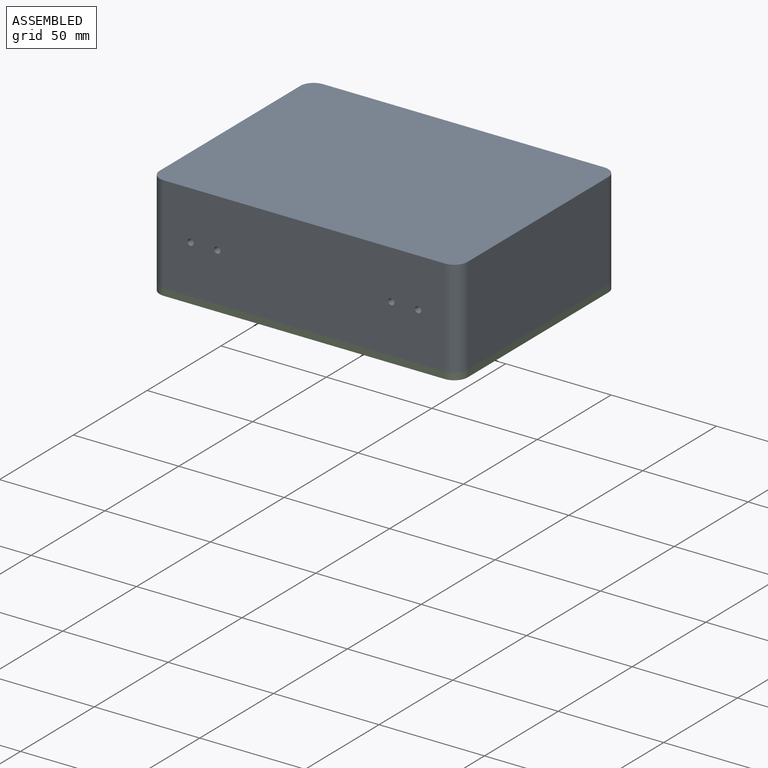
[diagram: assembled view]
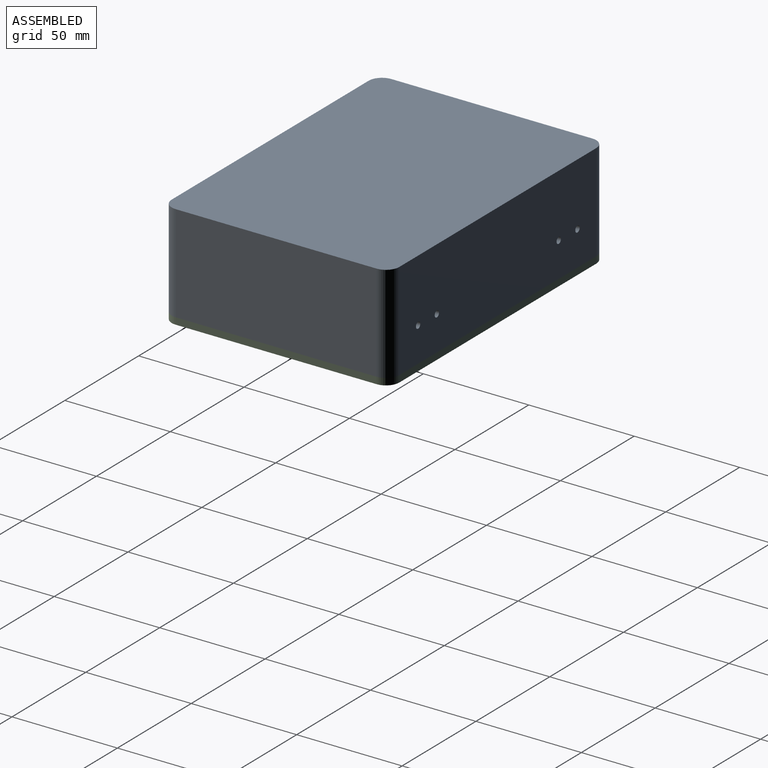
[diagram: assembled view, second angle]
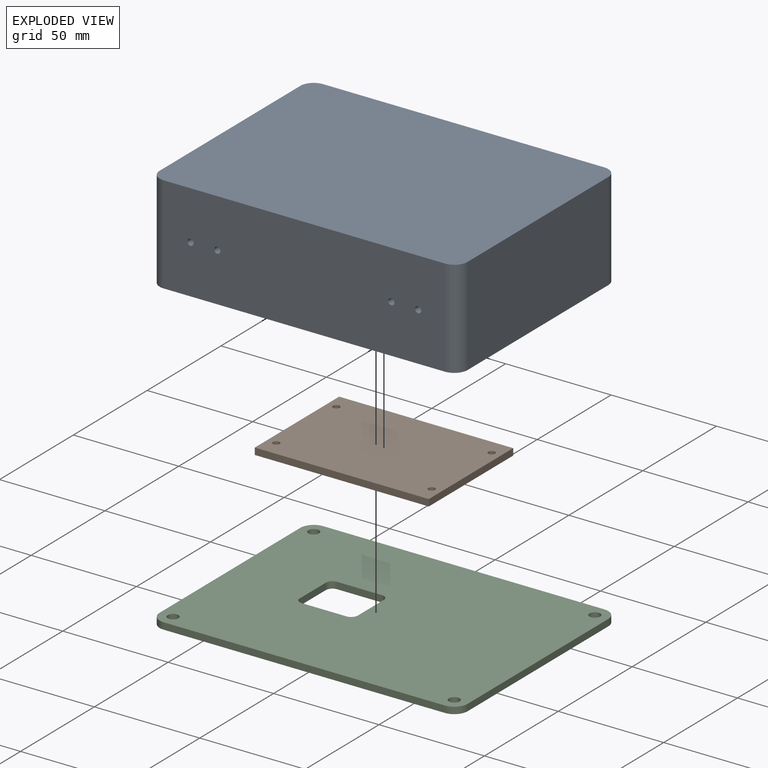
[diagram: exploded view]
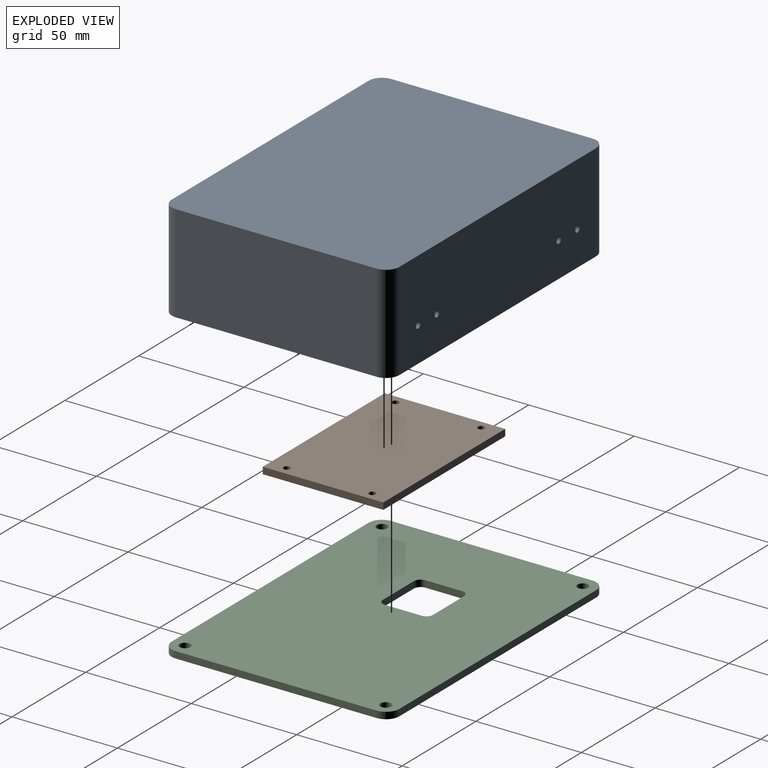
[diagram: exploded view, second angle]
ASSEMBLY  parts=3 mates=4
PART A: 118 faces, bbox 147.5x109.4x46.4 mm
  f0: plane 125.37x87.27mm, normal (0,0,-1), area 1358.3mm2, adj f1,f2,f3,f4,f5,f6,f7,f8
  f1: cylinder r=10.16mm len=10.16mm, axis (0,0,1), area 101.3mm2, adj f0,f2,f8,f9
  f2: plane 93.98x6.35mm, normal (0,1,0), area 596.8mm2, adj f0,f1,f3,f9
  f3: cylinder r=10.16mm len=10.16mm, axis (0,0,1), area 101.3mm2, adj f0,f2,f4,f9
  f4: plane 62.23x6.35mm, normal (1,0,0), area 395.2mm2, adj f0,f3,f5,f9
  f5: cylinder r=10.16mm len=10.16mm, axis (0,0,1), area 101.3mm2, adj f0,f4,f6,f9
  f6: plane 93.98x6.35mm, normal (0,-1,0), area 596.8mm2, adj f0,f5,f7,f9
  f7: cylinder r=10.16mm len=10.16mm, axis (0,0,1), area 101.3mm2, adj f0,f6,f8,f9
  f8: plane 62.23x6.35mm, normal (-1,0,0), area 395.2mm2, adj f0,f1,f7,f9
  f9: plane 114.3x82.55mm, normal (0,0,-1), area 3709mm2, adj f1,f2,f3,f4,f5,f6,f7,f8
  f10: cylinder r=6.35mm len=31.75mm, axis (0,0,1), area 316.7mm2, adj f9,f11,f17,f18
  f11: plane 76.2x31.75mm, normal (0,1,0), area 2419.3mm2, adj f9,f10,f12,f18
  f12: cylinder r=6.35mm len=31.75mm, axis (0,0,1), area 316.7mm2, adj f9,f11,f13,f18
  f13: plane 50.8x31.75mm, normal (1,0,0), area 1612.9mm2, adj f9,f12,f14,f18
  f14: cylinder r=6.35mm len=31.75mm, axis (0,0,1), area 316.7mm2, adj f9,f13,f15,f18
  f15: plane 76.2x31.75mm, normal (0,-1,0), area 2419.3mm2, adj f9,f14,f16,f18
  f16: cylinder r=6.35mm len=31.75mm, axis (0,0,1), area 316.7mm2, adj f9,f15,f17,f18
  f17: plane 50.8x31.75mm, normal (-1,0,0), area 1612.9mm2, adj f9,f10,f16,f18
  f18: plane 88.9x63.5mm, normal (0,0,-1), area 5583.3mm2, adj f10,f11,f12,f13,f14,f15,f16,f17
  f19: cone r=24.38mm half-angle=5deg, axis (0,0,-1), area 114mm2, adj f20,f34,f74,f106
  f20: plane 92.2x2.94mm, normal (0,1,-0.09), area 272.5mm2, adj f19,f21,f72,f104
  f21: cone r=24.38mm half-angle=5deg, axis (0,0,-1), area 114mm2, adj f20,f22,f70,f102
  f22: plane 54.1x2.94mm, normal (1,0,-0.09), area 159.9mm2, adj f21,f23,f71,f103
  f23: cone r=24.38mm half-angle=5deg, axis (0,0,-1), area 114mm2, adj f22,f24,f73,f105
  f24: plane 92.2x2.94mm, normal (0,-1,-0.09), area 272.5mm2, adj f23,f25,f75,f107
  f25: cone r=24.38mm half-angle=5deg, axis (0,0,-1), area 114mm2, adj f24,f34,f77,f109
  f26: plane 92.2x2.94mm, normal (0,-1,-0.09), area 272.5mm2, adj f27,f33,f83,f112
  f27: cone r=17.4mm half-angle=5deg, axis (0,0,1), area 79.9mm2, adj f26,f28,f81,f114
  f28: plane 54.1x2.94mm, normal (1,0,-0.09), area 159.9mm2, adj f27,f29,f79,f116
  f29: cone r=17.4mm half-angle=5deg, axis (0,0,1), area 79.9mm2, adj f28,f30,f78,f117
  f30: plane 92.2x2.94mm, normal (0,1,-0.09), area 272.5mm2, adj f29,f31,f80,f115
  f31: cone r=17.4mm half-angle=5deg, axis (0,0,1), area 79.9mm2, adj f30,f32,f82,f113
  f32: plane 54.1x2.94mm, normal (-1,0,-0.09), area 159.9mm2, adj f31,f33,f84,f111
  f33: cone r=17.4mm half-angle=5deg, axis (0,0,1), area 79.9mm2, adj f26,f32,f85,f110
  f34: plane 54.1x2.94mm, normal (-1,0,-0.09), area 159.9mm2, adj f19,f25,f76,f108
  f35: plane 139.81x101.71mm, normal (0,0,-1), area 2467.5mm2, adj f70,f71,f72,f73,f74,f75,f76,f77
  f36: plane 146.05x107.95mm, normal (0,0,1), area 15731.5mm2, adj f37,f38,f39,f40,f41,f42,f43,f44
  f37: cylinder r=6.35mm len=46.36mm, axis (0,0,-1), area 462.4mm2, adj f36,f38,f44,f45
  f38: plane 95.25x46.36mm, normal (1,0,0), area 4415.3mm2, adj f36,f37,f39,f45
  f39: cylinder r=6.35mm len=46.36mm, axis (0,0,-1), area 462.4mm2, adj f36,f38,f40,f45
  f40: plane 133.35x46.36mm, normal (0,1,0), area 6154.2mm2, adj f36,f39,f41,f45,f94,f96,f98,f100
  f41: cylinder r=6.35mm len=46.36mm, axis (0,0,-1), area 462.4mm2, adj f36,f40,f42,f45
  f42: plane 95.25x46.36mm, normal (-1,0,0), area 4415.3mm2, adj f36,f41,f43,f45
  f43: cylinder r=6.35mm len=46.36mm, axis (0,0,-1), area 462.4mm2, adj f36,f42,f44,f45
  f44: plane 133.35x46.36mm, normal (0,-1,0), area 6154.2mm2, adj f36,f37,f43,f45,f86,f88,f90,f92
  f45: plane 146.05x107.95mm, normal (0,0,-1), area 1219.6mm2, adj f37,f38,f39,f40,f41,f42,f43,f44
  f46: cylinder r=1.47mm len=12.7mm, axis (0,0,-1), area 117.6mm2, adj f9,f47
  f47: cone r=0mm half-angle=59deg, axis (0,0,-1), area 8mm2, adj f46
  f48: cylinder r=1.47mm len=12.7mm, axis (0,0,-1), area 117.6mm2, adj f9,f49
  f49: cone r=0mm half-angle=59deg, axis (0,0,-1), area 8mm2, adj f48
  f50: cylinder r=1.47mm len=12.7mm, axis (0,0,-1), area 117.6mm2, adj f9,f51
  f51: cone r=0mm half-angle=59deg, axis (0,0,-1), area 8mm2, adj f50
  f52: cylinder r=1.47mm len=12.7mm, axis (0,0,-1), area 117.6mm2, adj f9,f53
  f53: cone r=0mm half-angle=59deg, axis (0,0,-1), area 8mm2, adj f52
  f54: cylinder r=1.47mm len=6.35mm, axis (0,0,-1), area 58.8mm2, adj f18,f55
  f55: cone r=0mm half-angle=59deg, axis (0,0,-1), area 8mm2, adj f54
  f56: cylinder r=1.47mm len=6.35mm, axis (0,0,-1), area 58.8mm2, adj f18,f57
  f57: cone r=0mm half-angle=59deg, axis (0,0,-1), area 8mm2, adj f56
  f58: cylinder r=1.47mm len=6.35mm, axis (0,0,-1), area 58.8mm2, adj f18,f59
  f59: cone r=0mm half-angle=59deg, axis (0,0,-1), area 8mm2, adj f58
  f60: cylinder r=1.47mm len=6.35mm, axis (0,0,-1), area 58.8mm2, adj f18,f61
  f61: cone r=0mm half-angle=59deg, axis (0,0,-1), area 8mm2, adj f60
  f62: cylinder r=3.52mm len=7.04mm, axis (0,0,-1), area 52.2mm2, adj f45,f63
  f63: cone r=0mm half-angle=59deg, axis (0,0,-1), area 45.4mm2, adj f62
  f64: cylinder r=3.52mm len=7.04mm, axis (0,0,-1), area 52.2mm2, adj f45,f65
  f65: cone r=0mm half-angle=59deg, axis (0,0,-1), area 45.4mm2, adj f64
  f66: cylinder r=3.52mm len=7.04mm, axis (0,0,-1), area 52.2mm2, adj f45,f67
  f67: cone r=0mm half-angle=59deg, axis (0,0,-1), area 45.4mm2, adj f66
  f68: cylinder r=3.52mm len=7.04mm, axis (0,0,-1), area 52.2mm2, adj f45,f69
  f69: cone r=0mm half-angle=59deg, axis (0,0,-1), area 45.4mm2, adj f68
  f70: torus R=23.8mm, axis (0,0,-1), area 35.8mm2, adj f21,f35,f71,f72
  f71: cylinder r=0.64mm len=54.1mm, axis (0,1,0), area 51mm2, adj f22,f35,f70,f73
  f72: cylinder r=0.64mm len=92.2mm, axis (1,0,0), area 86.9mm2, adj f20,f35,f70,f74
  f73: torus R=23.8mm, axis (0,0,-1), area 35.8mm2, adj f23,f35,f71,f75
  f74: torus R=23.8mm, axis (0,0,-1), area 35.8mm2, adj f19,f35,f72,f76
  f75: cylinder r=0.64mm len=92.2mm, axis (1,0,0), area 86.9mm2, adj f24,f35,f73,f77
  f76: cylinder r=0.64mm len=54.1mm, axis (0,1,0), area 51mm2, adj f34,f35,f74,f77
  f77: torus R=23.8mm, axis (0,0,-1), area 35.8mm2, adj f25,f35,f75,f76
  f78: torus R=17.98mm, axis (0,0,-1), area 26mm2, adj f29,f35,f79,f80
  f79: cylinder r=0.64mm len=54.1mm, axis (0,-1,0), area 51mm2, adj f28,f35,f78,f81
  f80: cylinder r=0.64mm len=92.2mm, axis (-1,0,0), area 86.9mm2, adj f30,f35,f78,f82
  f81: torus R=17.98mm, axis (0,0,-1), area 26mm2, adj f27,f35,f79,f83
  f82: torus R=17.98mm, axis (0,0,-1), area 26mm2, adj f31,f35,f80,f84
  f83: cylinder r=0.64mm len=92.2mm, axis (-1,0,0), area 86.9mm2, adj f26,f35,f81,f85
  f84: cylinder r=0.64mm len=54.1mm, axis (0,-1,0), area 51mm2, adj f32,f35,f82,f85
  f85: torus R=17.98mm, axis (0,0,-1), area 26mm2, adj f33,f35,f83,f84
  f86: cylinder r=1.47mm len=9.53mm, axis (0,-1,0), area 88.2mm2, adj f44,f87
  f87: cone r=0mm half-angle=59deg, axis (0,-1,0), area 8mm2, adj f86
  f88: cylinder r=1.47mm len=9.53mm, axis (0,-1,0), area 88.2mm2, adj f44,f89
  f89: cone r=0mm half-angle=59deg, axis (0,-1,0), area 8mm2, adj f88
  f90: cylinder r=1.47mm len=9.53mm, axis (0,-1,0), area 88.2mm2, adj f44,f91
  f91: cone r=0mm half-angle=59deg, axis (0,-1,0), area 8mm2, adj f90
  f92: cylinder r=1.47mm len=9.53mm, axis (0,-1,0), area 88.2mm2, adj f44,f93
  f93: cone r=0mm half-angle=59deg, axis (0,-1,0), area 8mm2, adj f92
  f94: cylinder r=1.47mm len=9.53mm, axis (0,1,0), area 88.2mm2, adj f40,f95
  f95: cone r=0mm half-angle=59deg, axis (0,1,0), area 8mm2, adj f94
  f96: cylinder r=1.47mm len=9.53mm, axis (0,1,0), area 88.2mm2, adj f40,f97
  f97: cone r=0mm half-angle=59deg, axis (0,1,0), area 8mm2, adj f96
  f98: cylinder r=1.47mm len=9.53mm, axis (0,1,0), area 88.2mm2, adj f40,f99
  f99: cone r=0mm half-angle=59deg, axis (0,1,0), area 8mm2, adj f98
  f100: cylinder r=1.47mm len=9.53mm, axis (0,1,0), area 88.2mm2, adj f40,f101
  f101: cone r=0mm half-angle=59deg, axis (0,1,0), area 8mm2, adj f100
  f102: torus R=25.2mm, axis (0,0,1), area 29.5mm2, adj f21,f45,f103,f104
  f103: cylinder r=0.51mm len=54.1mm, axis (0,1,0), area 40.8mm2, adj f22,f45,f102,f105
  f104: cylinder r=0.51mm len=92.2mm, axis (1,0,0), area 69.5mm2, adj f20,f45,f102,f106
  f105: torus R=25.2mm, axis (0,0,1), area 29.5mm2, adj f23,f45,f103,f107
  f106: torus R=25.2mm, axis (0,0,1), area 29.5mm2, adj f19,f45,f104,f108
  f107: cylinder r=0.51mm len=92.2mm, axis (1,0,0), area 69.5mm2, adj f24,f45,f105,f109
  f108: cylinder r=0.51mm len=54.1mm, axis (0,1,0), area 40.8mm2, adj f34,f45,f106,f109
  f109: torus R=25.2mm, axis (0,0,1), area 29.5mm2, adj f25,f45,f107,f108
  f110: torus R=16.58mm, axis (0,0,1), area 20mm2, adj f0,f33,f111,f112
  f111: cylinder r=0.51mm len=54.1mm, axis (0,1,0), area 40.8mm2, adj f0,f32,f110,f113
  f112: cylinder r=0.51mm len=92.2mm, axis (1,0,0), area 69.5mm2, adj f0,f26,f110,f114
  f113: torus R=16.58mm, axis (0,0,1), area 20mm2, adj f0,f31,f111,f115
  f114: torus R=16.58mm, axis (0,0,1), area 20mm2, adj f0,f27,f112,f116
  f115: cylinder r=0.51mm len=92.2mm, axis (1,0,0), area 69.5mm2, adj f0,f30,f113,f117
  f116: cylinder r=0.51mm len=54.1mm, axis (0,1,0), area 40.8mm2, adj f0,f28,f114,f117
  f117: torus R=16.58mm, axis (0,0,1), area 20mm2, adj f0,f29,f115,f116
PART B: 10 faces, bbox 82.6x57.2x3.2 mm
  f0: plane 57.15x3.18mm, normal (1,0,0), area 181.5mm2, adj f1,f3,f4,f5
  f1: plane 82.55x3.18mm, normal (0,1,0), area 262.1mm2, adj f0,f2,f4,f5
  f2: plane 57.15x3.18mm, normal (-1,0,0), area 181.5mm2, adj f1,f3,f4,f5
  f3: plane 82.55x3.18mm, normal (0,-1,0), area 262.1mm2, adj f0,f2,f4,f5
  f4: plane 82.55x57.15mm, normal (0,0,1), area 4686.1mm2, adj f0,f1,f2,f3,f6,f7,f8,f9
  f5: plane 82.55x57.15mm, normal (0,0,-1), area 4686.1mm2, adj f0,f1,f2,f3,f6,f7,f8,f9
  f6: cylinder r=1.59mm len=3.18mm, axis (0,0,-1), area 31.7mm2, adj f4,f5
  f7: cylinder r=1.59mm len=3.18mm, axis (0,0,-1), area 31.7mm2, adj f4,f5
  f8: cylinder r=1.59mm len=3.18mm, axis (0,0,-1), area 31.7mm2, adj f4,f5
  f9: cylinder r=1.59mm len=3.18mm, axis (0,0,-1), area 31.7mm2, adj f4,f5
PART C: 22 faces, bbox 146.1x108x3.2 mm
  f0: plane 133.35x3.18mm, normal (0,-1,0), area 423.4mm2, adj f1,f7,f8,f9
  f1: cylinder r=6.35mm len=6.35mm, axis (0,0,-1), area 31.7mm2, adj f0,f2,f8,f9
  f2: plane 95.25x3.18mm, normal (1,0,0), area 302.4mm2, adj f1,f3,f8,f9
  f3: cylinder r=6.35mm len=6.35mm, axis (0,0,-1), area 31.7mm2, adj f2,f4,f8,f9
  f4: plane 133.35x3.18mm, normal (0,1,0), area 423.4mm2, adj f3,f5,f8,f9
  f5: cylinder r=6.35mm len=6.35mm, axis (0,0,-1), area 31.7mm2, adj f4,f6,f8,f9
  f6: plane 95.25x3.18mm, normal (-1,0,0), area 302.4mm2, adj f5,f7,f8,f9
  f7: cylinder r=6.35mm len=6.35mm, axis (0,0,-1), area 31.7mm2, adj f0,f6,f8,f9
  f8: plane 146.05x107.95mm, normal (0,0,1), area 15001.2mm2, adj f0,f1,f2,f3,f4,f5,f6,f7
  f9: plane 146.05x107.95mm, normal (0,0,-1), area 15001.2mm2, adj f0,f1,f2,f3,f4,f5,f6,f7
  f10: cylinder r=2.54mm len=5.08mm, axis (0,0,1), area 50.7mm2, adj f8,f9
  f11: cylinder r=2.54mm len=5.08mm, axis (0,0,1), area 50.7mm2, adj f8,f9
  f12: cylinder r=2.54mm len=5.08mm, axis (0,0,1), area 50.7mm2, adj f8,f9
  f13: cylinder r=2.54mm len=5.08mm, axis (0,0,1), area 50.7mm2, adj f8,f9
  f14: cylinder r=3.17mm len=3.18mm, axis (0,0,1), area 15.8mm2, adj f8,f9,f15,f21
  f15: plane 21.17x3.18mm, normal (0,-1,0), area 67.2mm2, adj f8,f9,f14,f16
  f16: cylinder r=3.17mm len=3.18mm, axis (0,0,1), area 15.8mm2, adj f8,f9,f15,f17
  f17: plane 17.55x3.18mm, normal (1,0,0), area 55.7mm2, adj f8,f9,f16,f18
  f18: cylinder r=3.17mm len=3.18mm, axis (0,0,1), area 15.8mm2, adj f8,f9,f17,f19
  f19: plane 21.17x3.18mm, normal (0,1,0), area 67.2mm2, adj f8,f9,f18,f20
  f20: cylinder r=3.17mm len=3.18mm, axis (0,0,1), area 15.8mm2, adj f8,f9,f19,f21
  f21: plane 17.55x3.18mm, normal (-1,0,0), area 55.7mm2, adj f8,f9,f14,f20
PLACE A t=(51.59,72.53,113.88)mm
PLACE B rot(axis=(1,0,0),180deg) t=(51.59,72.53,113.88)mm
PLACE C t=(51.59,72.53,72.61)mm
MATE fastened B.f9 <-> A.f60  axis (0,0,1) through (14.76,92.85,113.88)mm
MATE planar B.f5 <-> A.f18  axis (0,0,1) through (51.59,72.53,113.88)mm
MATE planar C.f8 <-> A.f39  axis (0,0,1) through (-15.08,126.51,75.78)mm
MATE slider C.f3 <-> A.f39  axis (0,0,-1) through (118.27,120.16,72.61)mm
